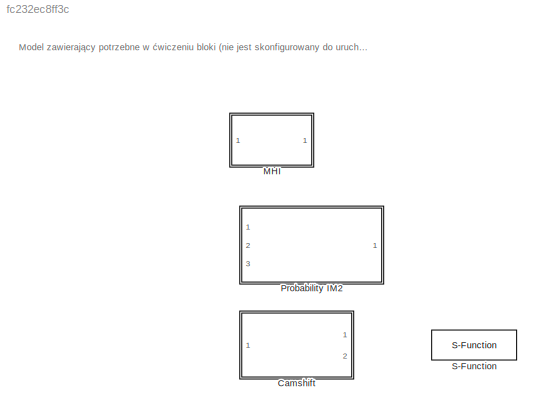
MODEL slx_fc232ec8ff3c
KIND model
CONFIG AbsTol = auto
CONFIG FixedStep = auto
CONFIG MaxStep = auto
CONFIG MinStep = auto
CONFIG RelTol = 1e-3
CONFIG SampleTimeConstraint = Unconstrained
CONFIG Solver = ode45
CONFIG SolverMode = Auto
CONFIG SolverName = ode45
CONFIG StartTime = 0.0
CONFIG StopTime = 10.0
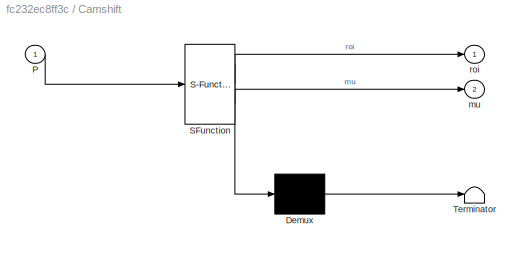
BLOCK [SubSystem] Camshift
  ErrorFcn = Stateflow.Translate.translate
  PermitHierarchicalResolution = ExplicitOnly
  Ports = [1, 2]
  RequestExecContextInheritance = off
  SFBlockType = MATLAB Function
  TreatAsAtomicUnit = on
BLOCK [Demux] Camshift/ Demux 
  Outputs = 1
  Ports = [1, 1]
BLOCK [S-Function] Camshift/ SFunction 
  EnableBusSupport = on
  FunctionName = sf_sfun
  PortCounts = [1 3]
  Ports = [1, 3]
  Tag = Stateflow S-Function bloczki_1 3
BLOCK [Terminator] Camshift/ Terminator 
BLOCK [Inport] Camshift/P
  IconDisplay = Port number
BLOCK [Outport] Camshift/mu
  IconDisplay = Port number
  Port = 2
BLOCK [Outport] Camshift/roi
  IconDisplay = Port number
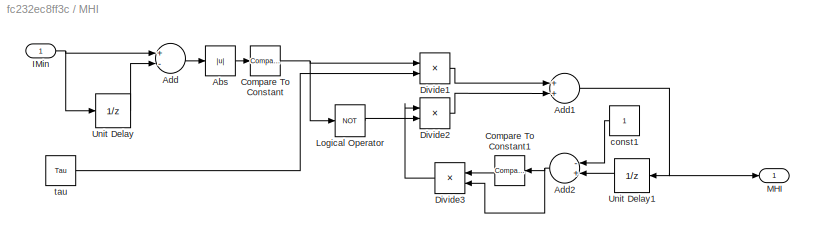
BLOCK [SubSystem] MHI
  Ports = [1, 1]
  RequestExecContextInheritance = off
BLOCK [Abs] MHI/Abs
  SaturateOnIntegerOverflow = off
BLOCK [Sum] MHI/Add
  InputSameDT = off
  Inputs = +-
  OutDataTypeStr = int16
  Ports = [2, 1]
  SaturateOnIntegerOverflow = off
BLOCK [Sum] MHI/Add1
  InputSameDT = off
  OutDataTypeStr = double
  Ports = [2, 1]
  SaturateOnIntegerOverflow = off
BLOCK [Sum] MHI/Add2
  InputSameDT = off
  Inputs = -+
  OutDataTypeStr = double
  Ports = [2, 1]
  SaturateOnIntegerOverflow = off
BLOCK [Reference] MHI/Compare To Constant  REF=simulink/Logic and Bit
Operations/Compare
To Constant
  OutDataTypeStr = uint8
  Ports = [1, 1]
  SourceBlock = simulink/Logic and Bit\nOperations/Compare\nTo Constant
  SourceType = Compare To Constant
  ZeroCross = off
  const = tres
  relop = >
BLOCK [Reference] MHI/Compare To Constant1  REF=simulink/Logic and Bit
Operations/Compare
To Constant
  OutDataTypeStr = uint8
  Ports = [1, 1]
  SourceBlock = simulink/Logic and Bit\nOperations/Compare\nTo Constant
  SourceType = Compare To Constant
  ZeroCross = off
  const = 0
  relop = >=
BLOCK [Product] MHI/Divide1
  InputSameDT = off
  Inputs = **
  OutDataTypeStr = Inherit: Inherit via internal rule
  Ports = [2, 1]
  RndMeth = Floor
  SaturateOnIntegerOverflow = off
BLOCK [Product] MHI/Divide2
  InputSameDT = off
  Inputs = **
  OutDataTypeStr = Inherit: Inherit via internal rule
  Ports = [2, 1]
  RndMeth = Floor
  SaturateOnIntegerOverflow = off
BLOCK [Product] MHI/Divide3
  InputSameDT = off
  Inputs = **
  OutDataTypeStr = Inherit: Inherit via internal rule
  Ports = [2, 1]
  RndMeth = Floor
  SaturateOnIntegerOverflow = off
BLOCK [Inport] MHI/IMin
  IconDisplay = Port number
BLOCK [Logic] MHI/Logical Operator
  AllPortsSameDT = off
  Operator = NOT
  OutDataTypeStr = boolean
  Ports = [1, 1]
BLOCK [Outport] MHI/MHI
  IconDisplay = Port number
BLOCK [UnitDelay] MHI/Unit Delay
  SampleTime = -1
BLOCK [UnitDelay] MHI/Unit Delay1
  SampleTime = -1
BLOCK [Constant] MHI/const1
BLOCK [Constant] MHI/tau
  Value = Tau
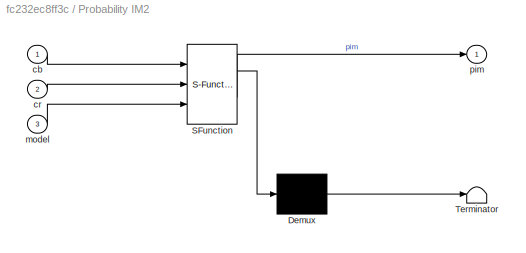
BLOCK [SubSystem] Probability IM2
  ErrorFcn = Stateflow.Translate.translate
  PermitHierarchicalResolution = ExplicitOnly
  Ports = [3, 1]
  RequestExecContextInheritance = off
  SFBlockType = MATLAB Function
  TreatAsAtomicUnit = on
BLOCK [Demux] Probability IM2/ Demux 
  Outputs = 1
  Ports = [1, 1]
BLOCK [S-Function] Probability IM2/ SFunction 
  EnableBusSupport = on
  FunctionName = sf_sfun
  PortCounts = [3 2]
  Ports = [3, 2]
  Tag = Stateflow S-Function bloczki_1 2
BLOCK [Terminator] Probability IM2/ Terminator 
BLOCK [Inport] Probability IM2/cb
  IconDisplay = Port number
BLOCK [Inport] Probability IM2/cr
  IconDisplay = Port number
  Port = 2
BLOCK [Inport] Probability IM2/model
  IconDisplay = Port number
  Port = 3
BLOCK [Outport] Probability IM2/pim
  IconDisplay = Port number
BLOCK [S-Function] S-Function
  FunctionName = my_gui_sfunc
  Ports = [1]
ANNOTATION (root): Model zawierający potrzebne w ćwiczeniu bloki (nie jest skonfigurowany do uruchamiania)
LINE MHI/Abs:1 -> MHI/Compare To Constant:1
NET MHI/Add1:1 -> MHI/MHI:1, MHI/Unit Delay1:1
NET MHI/Add2:1 -> MHI/Compare To Constant1:1, MHI/Divide3:2
LINE MHI/Add:1 -> MHI/Abs:1
LINE MHI/Compare To Constant1:1 -> MHI/Divide3:1
NET MHI/Compare To Constant:1 -> MHI/Divide1:1, MHI/Logical Operator:1
LINE MHI/Divide1:1 -> MHI/Add1:1
LINE MHI/Divide2:1 -> MHI/Add1:2
LINE MHI/Divide3:1 -> MHI/Divide2:1
NET MHI/IMin:1 -> MHI/Add:1, MHI/Unit Delay:1
LINE MHI/Logical Operator:1 -> MHI/Divide2:2
LINE MHI/Unit Delay1:1 -> MHI/Add2:2
LINE MHI/Unit Delay:1 -> MHI/Add:2
LINE MHI/const1:1 -> MHI/Add2:1
LINE MHI/tau:1 -> MHI/Divide1:2
note: NET lines group one-source signal fan-out (src -> all destinations, sorted); 1:1 wires keep LINE
CHART Probability IM2 states=1 transitions=1
  STATE_LABEL 'eML_blk_kernel()'
  STATE_LABEL 'SCRIPT:\nfunction pim = probabilityIM2(cb,cr,model)\n%#codegen\n% Wyznaczenie tablicy prawdopodobienstwa dla obrazu wg zadanego modelu koloru skory.\n%\n% INPUT:\n% > im - testowy obraz wejsciowy w formacie RGB\n% > model - model koloru skory (tablica [256*256])\n% OUTPUT:                                                                         \n% > skin_model - obraz prawdopodobienstwa\n%\n% DEPENDICIES:\n% ...<+263ch>'
CHART Camshift states=1 transitions=1
  STATE_LABEL 'eML_blk_kernel()'
  STATE_LABEL 'SCRIPT:\nfunction [roi,mu]=Camshift(P)\n%#codegen\n% Uproszczony algorytm CAMSHIFT\n%\n% INPUT:\n% > P       - obraz prawdopodobienstwa <0-1>\n% OUTPUT:                                                                         \n% > roi     - wspolrzedne ROI sledzonego obiektu [x,y,w,h]\n% > mu      - wspolrzedne srodka ROI [x,y]\n%\n% DEPENDICIES:\n% -\n% COMMENTS:\n% > TODO kontrola argumentow wejsciowych oraz ...<+757ch>'
